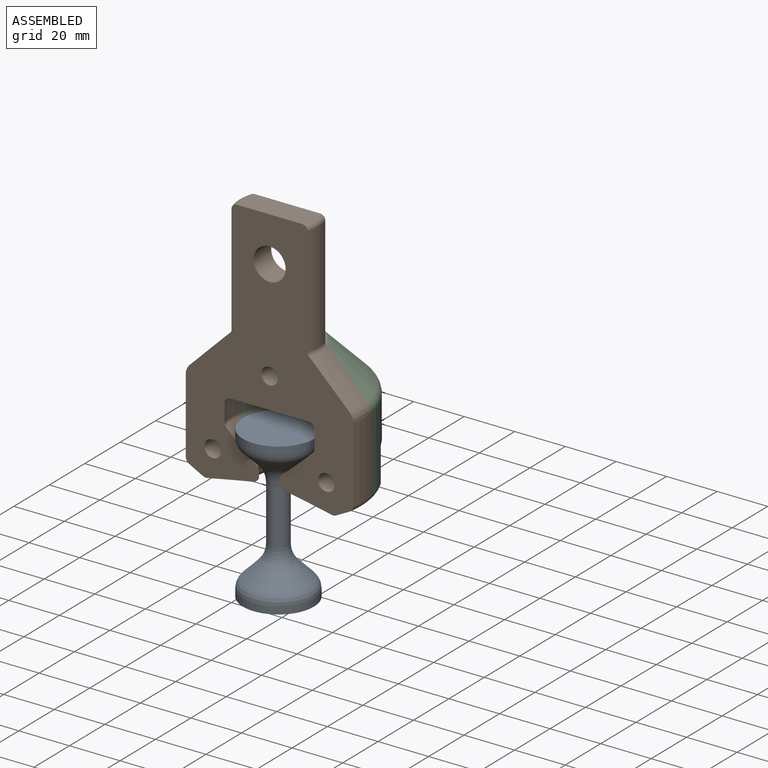
[diagram: assembled view]
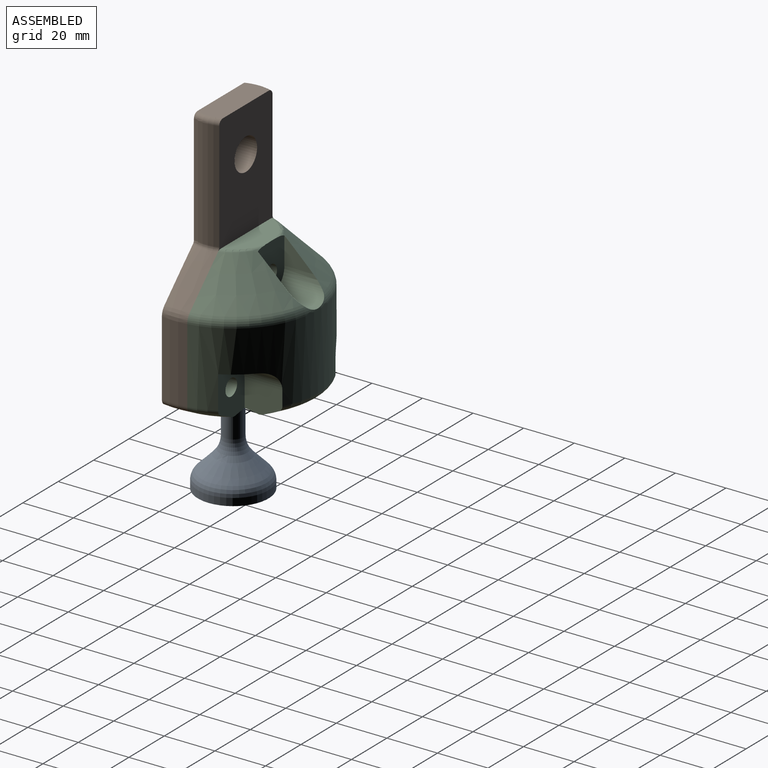
[diagram: assembled view, second angle]
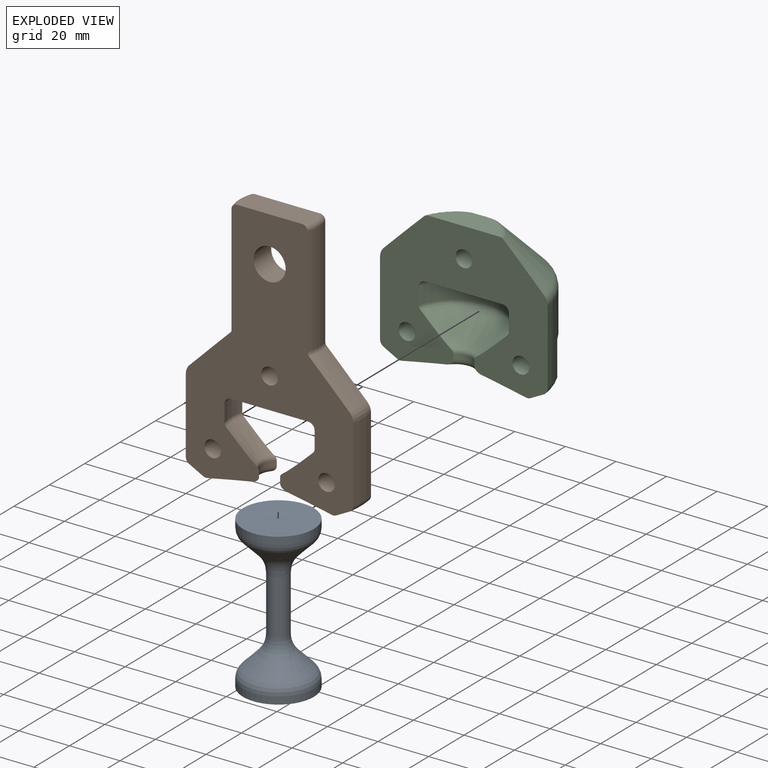
[diagram: exploded view]
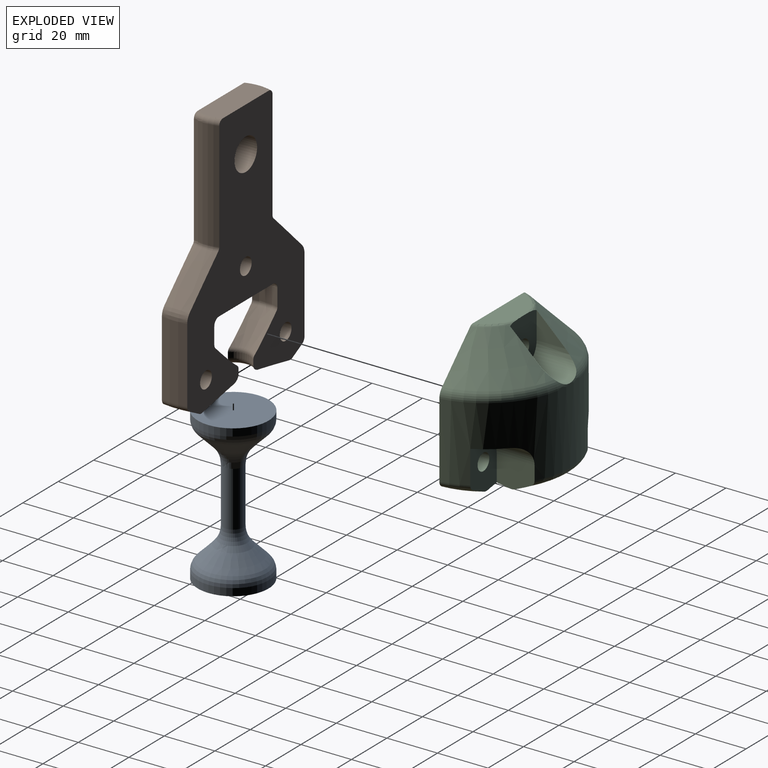
[diagram: exploded view, second angle]
ASSEMBLY  parts=3 mates=3
PART A: 11 faces, bbox 30.3x30.3x60.6 mm
  f0: cylinder r=14mm len=28mm, axis (0,0,1), area 257.6mm2, adj f1,f10
  f1: plane 28x28mm, normal (0,0,1), area 615.8mm2, adj f0
  f2: plane 28x28mm, normal (0,0,-1), area 615.8mm2, adj f3
  f3: cylinder r=14mm len=28mm, axis (0,0,1), area 257.6mm2, adj f2,f9
  f4: cone r=14mm half-angle=45deg, axis (0,0,-1), area 484.8mm2, adj f7,f9
  f5: cylinder r=4mm len=21.72mm, axis (0,0,1), area 545.8mm2, adj f7,f8
  f6: cone r=4mm half-angle=45deg, axis (0,0,1), area 484.8mm2, adj f8,f10
  f7: torus R=14mm, axis (0,0,1), area 246.6mm2, adj f4,f5
  f8: torus R=14mm, axis (0,0,1), area 246.6mm2, adj f5,f6
  f9: torus R=9mm, axis (0,0,-1), area 333.1mm2, adj f3,f4
  f10: torus R=9mm, axis (0,0,-1), area 333.1mm2, adj f0,f6
PART B: 42 faces, bbox 69x30.8x102 mm
  f0: plane 32x10mm, normal (0,0,-1), area 314.7mm2, adj f18,f19,f34,f38
  f1: cylinder r=18.5mm len=10mm, axis (0,0,-1), area 67.6mm2, adj f18,f19,f20,f34
  f2: cylinder r=18.5mm len=10mm, axis (0,0,-1), area 67.6mm2, adj f18,f19,f24,f38
  f3: cone r=6.5mm half-angle=45deg, axis (0,0,1), area 158.9mm2, adj f18,f19,f24,f25
  f4: cone r=6.5mm half-angle=45deg, axis (0,0,1), area 158.9mm2, adj f18,f19,f20,f21
  f5: cylinder r=6.5mm len=10mm, axis (0,0,-1), area 24.3mm2, adj f18,f19,f21,f35
  f6: cylinder r=6.5mm len=10mm, axis (0,0,-1), area 24.3mm2, adj f18,f19,f25,f39
  f7: cone r=6.5mm half-angle=78.4deg, axis (0,0,-1), area 173.3mm2, adj f18,f19,f39,f40
  f8: cone r=6.5mm half-angle=78.4deg, axis (0,0,-1), area 173.3mm2, adj f18,f19,f35,f36
  f9: cone r=26mm half-angle=61.9deg, axis (0,0,1), area 61.6mm2, adj f18,f19,f40,f41
  f10: cone r=26mm half-angle=61.9deg, axis (0,0,1), area 61.6mm2, adj f18,f19,f36,f37
  f11: cylinder r=33.5mm len=29.64mm, axis (0,0,-1), area 297.5mm2, adj f18,f19,f32,f37
  f12: cylinder r=33.5mm len=29.64mm, axis (0,0,-1), area 297.5mm2, adj f18,f19,f33,f41
  f13: cone r=15.85mm half-angle=45deg, axis (0,0,-1), area 240.3mm2, adj f18,f19,f26,f33
  f14: cone r=15.85mm half-angle=45deg, axis (0,0,-1), area 240.3mm2, adj f18,f19,f22,f32
  f15: cylinder r=15.85mm len=43.27mm, axis (0,0,-1), area 440.2mm2, adj f18,f19,f22,f23
  f16: cylinder r=15.85mm len=43.27mm, axis (0,0,-1), area 440.2mm2, adj f18,f19,f26,f27
  f17: plane 27.7x10mm, normal (0,0,1), area 270.9mm2, adj f18,f19,f23,f27
  f18: plane 102.04x67.46mm, normal (0,1,0), area 3649mm2, adj f0,f1,f2,f3,f4,f5,f6,f7
  f19: plane 102.04x67.46mm, normal (0,-1,0), area 3649mm2, adj f0,f1,f2,f3,f4,f5,f6,f7
  f20: torus R=16.5mm, axis (0,0,-1), area 16mm2, adj f1,f4,f18,f19
  f21: torus R=8.5mm, axis (0,0,1), area 17.5mm2, adj f4,f5,f18,f19
  f22: torus R=17.85mm, axis (0,0,-1), area 15.9mm2, adj f14,f15,f18,f19
  f23: torus R=13.85mm, axis (0,0,1), area 32.7mm2, adj f15,f17,f18,f19
  f24: torus R=16.5mm, axis (0,0,-1), area 16mm2, adj f2,f3,f18,f19
  f25: torus R=8.5mm, axis (0,0,1), area 17.5mm2, adj f3,f6,f18,f19
  f26: torus R=17.85mm, axis (0,0,-1), area 15.9mm2, adj f13,f16,f18,f19
  f27: torus R=13.85mm, axis (0,0,1), area 32.7mm2, adj f16,f17,f18,f19
  f28: cylinder r=3.3mm len=10mm, axis (0,-1,0), area 207.3mm2, adj f18,f19
  f29: cylinder r=3.3mm len=10mm, axis (0,-1,0), area 207.3mm2, adj f18,f19
  f30: cylinder r=3.3mm len=10mm, axis (0,-1,0), area 207.3mm2, adj f18,f19
  f31: cylinder r=6.35mm len=12.7mm, axis (0,-1,0), area 399mm2, adj f18,f19
  f32: torus R=28.5mm, axis (0,0,1), area 39.7mm2, adj f11,f14,f18,f19
  f33: torus R=28.5mm, axis (0,0,1), area 39.7mm2, adj f12,f13,f18,f19
  f34: torus R=16mm, axis (0,0,1), area 40.8mm2, adj f0,f1,f18,f19
  f35: torus R=9mm, axis (0,0,1), area 36.9mm2, adj f5,f8,f18,f19
  f36: torus R=25.62mm, axis (0,0,1), area 17.4mm2, adj f8,f10,f18,f19
  f37: torus R=31mm, axis (0,0,1), area 27.3mm2, adj f10,f11,f18,f19
  f38: torus R=16mm, axis (0,0,1), area 40.8mm2, adj f0,f2,f18,f19
  f39: torus R=9mm, axis (0,0,1), area 36.9mm2, adj f6,f7,f18,f19
  f40: torus R=25.62mm, axis (0,0,1), area 17.4mm2, adj f7,f9,f18,f19
  f41: torus R=31mm, axis (0,0,1), area 27.3mm2, adj f9,f12,f18,f19
PART C: 41 faces, bbox 72.4x35.3x55.5 mm
  f0: cone r=15.85mm half-angle=45deg, axis (0,0,-1), area 564.8mm2, adj f4,f13,f17,f18,f20,f21
  f1: plane 28.33x10mm, normal (0,0,1), area 207mm2, adj f4,f13,f14,f20
  f2: cone r=26mm half-angle=61.9deg, axis (0,0,1), area 193.4mm2, adj f24,f27,f34,f36
  f3: cone r=26mm half-angle=61.9deg, axis (0,0,1), area 65.9mm2, adj f13,f29,f33,f35
  f4: torus R=15.02mm, axis (0,0,1), area 24.9mm2, adj f0,f1,f13,f20
  f5: cylinder r=33.5mm len=66.25mm, axis (0,0,-1), area 2282.6mm2, adj f13,f17,f22,f23,f24,f25,f26,f27
  f6: cone r=15.85mm half-angle=45deg, axis (0,0,-1), area 564.8mm2, adj f13,f14,f17,f19,f20,f21
  f7: plane 30.4x11mm, normal (0,0,-1), area 244.8mm2, adj f13,f37
  f8: cylinder r=18.5mm len=35.62mm, axis (0,0,-1), area 320.2mm2, adj f13,f15,f37
  f9: cone r=6.5mm half-angle=45deg, axis (0,0,1), area 442.5mm2, adj f13,f15,f16
  f10: cylinder r=6.5mm len=8.31mm, axis (0,0,-1), area 19.2mm2, adj f13,f16,f38
  f11: cone r=6.5mm half-angle=78.4deg, axis (0,0,-1), area 694.9mm2, adj f13,f24,f25,f27,f29,f33,f34,f38
  f12: cone r=26mm half-angle=61.9deg, axis (0,0,1), area 65.9mm2, adj f13,f25,f39,f40
  f13: plane 66.72x55.2mm, normal (0,-1,0), area 2390.4mm2, adj f0,f1,f3,f4,f5,f6,f7,f8
  f14: torus R=15.02mm, axis (0,0,1), area 24.9mm2, adj f1,f6,f13,f20
  f15: torus R=16.5mm, axis (0,0,-1), area 74.3mm2, adj f8,f9,f13
  f16: torus R=8.5mm, axis (0,0,1), area 15.6mm2, adj f9,f10,f13
  f17: torus R=28.5mm, axis (0,0,1), area 338.2mm2, adj f0,f5,f6,f13,f21
  f18: plane 11.49x10.76mm, normal (-1,0,0), area 62.5mm2, adj f0,f20,f21
  f19: plane 11.49x10.76mm, normal (1,0,0), area 62.5mm2, adj f6,f20,f21
  f20: plane 19.92x15.74mm, normal (0,1,0), area 226.7mm2, adj f0,f1,f4,f6,f14,f18,f19,f21
  f21: cylinder r=7.5mm len=18.47mm, axis (0,-1,0), area 384.4mm2, adj f0,f6,f17,f18,f19,f20
  f22: cylinder r=7.5mm len=14.95mm, axis (0,-1,0), area 156.6mm2, adj f5,f23,f24,f25
  f23: plane 9.82x7.45mm, normal (0,0,-1), area 41.3mm2, adj f5,f22,f25
  f24: plane 15.27x11.38mm, normal (-1,0,0), area 146.4mm2, adj f2,f5,f11,f22,f25,f34,f36
  f25: plane 18.87x15.27mm, normal (0,1,0), area 212.3mm2, adj f5,f11,f12,f22,f23,f24,f31,f39
  f26: cylinder r=7.5mm len=14.95mm, axis (0,-1,0), area 156.6mm2, adj f5,f27,f28,f29
  f27: plane 15.27x11.37mm, normal (1,0,0), area 146.4mm2, adj f2,f5,f11,f26,f29,f34,f36
  f28: plane 9.82x7.45mm, normal (0,0,-1), area 41.3mm2, adj f5,f26,f29
  f29: plane 18.88x15.27mm, normal (0,1,0), area 212.3mm2, adj f3,f5,f11,f26,f27,f28,f30,f33
  f30: cylinder r=3.3mm len=10mm, axis (0,-1,0), area 207.3mm2, adj f13,f29
  f31: cylinder r=3.3mm len=10mm, axis (0,-1,0), area 207.3mm2, adj f13,f25
  f32: cylinder r=3.3mm len=10mm, axis (0,-1,0), area 207.3mm2, adj f13,f20
  f33: torus R=25.62mm, axis (0,0,1), area 19mm2, adj f3,f11,f13,f29
  f34: torus R=25.62mm, axis (0,0,1), area 55.4mm2, adj f2,f11,f24,f27
  f35: torus R=31mm, axis (0,0,1), area 28.7mm2, adj f3,f5,f13,f29
  f36: torus R=31mm, axis (0,0,1), area 84.7mm2, adj f2,f5,f24,f27
  f37: torus R=16mm, axis (0,0,1), area 176.2mm2, adj f7,f8,f13
  f38: torus R=9mm, axis (0,0,1), area 40.6mm2, adj f10,f11,f13
  f39: torus R=25.62mm, axis (0,0,1), area 19mm2, adj f11,f12,f13,f25
  f40: torus R=31mm, axis (0,0,1), area 28.7mm2, adj f5,f12,f13,f25
PLACE A t=(-47.68,-28.15,-78.34)mm
PLACE B t=(-47.68,-28.15,-61.93)mm
PLACE C t=(-47.68,-28.15,-61.93)mm
MATE cylindrical C.f0 <-> A.f0  axis (0,0,-1) through (-47.68,-28.15,-63.82)mm
MATE planar C.f13 <-> B.f18  axis (0,-1,0) through (-47.68,-23.15,-42.57)mm
MATE cylindrical C.f21 <-> B.f29  axis (0,-1,0) through (-47.68,-18.15,-27.74)mm
